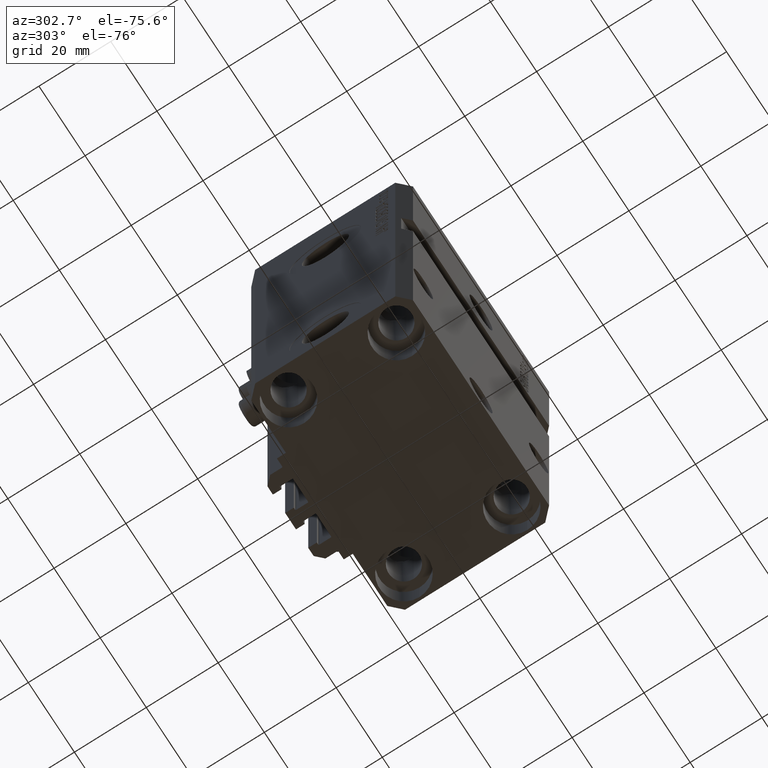
[diagram: clean part render]
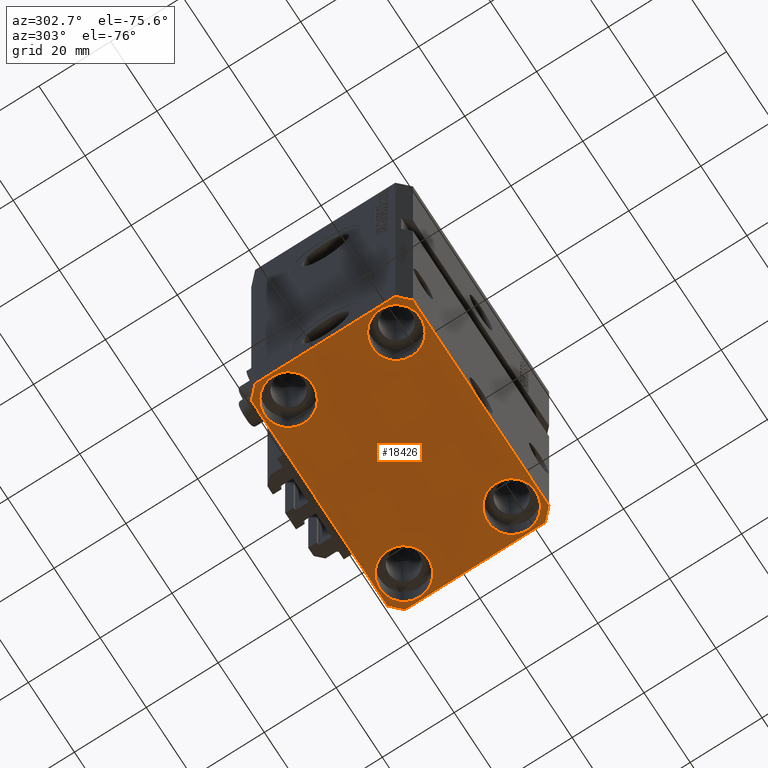
[diagram: same view with one face highlighted and labeled with its STEP entity id]
A machine part, auxiliary view. The second image highlights one B-rep face of the part: STEP entity #18426.
In plain terms, the highlighted planar face has unit normal (0, 0, 1).
Its self-contained STEP definition (entity closure, byte-faithful):
#554 = FACE_BOUND ( 'NONE', #3876, .T. ) ;
#1653 = VECTOR ( 'NONE', #14695, 1000.000000000000000 ) ;
#1756 = CARTESIAN_POINT ( 'NONE',  ( 32.49999999999651124, -19.49999999999949196, -107.0000000000000000 ) ) ;
#2428 = EDGE_CURVE ( 'NONE', #6114, #38193, #13935, .T. ) ;
#2500 = EDGE_CURVE ( 'NONE', #31139, #47127, #18763, .T. ) ;
#2878 = DIRECTION ( 'NONE',  ( -0.000000000000000000, -0.000000000000000000, 1.000000000000000000 ) ) ;
#3039 = ORIENTED_EDGE ( 'NONE', *, *, #32647, .T. ) ;
#3407 = EDGE_CURVE ( 'NONE', #38193, #6114, #41357, .T. ) ;
#3694 = CARTESIAN_POINT ( 'NONE',  ( 31.74999999997746869, -15.00000000000000000, -107.0000000000000000 ) ) ;
#3876 = EDGE_LOOP ( 'NONE', ( #34654, #14080 ) ) ;
#4084 = DIRECTION ( 'NONE',  ( 1.000000000000000000, 0.000000000000000000, -0.000000000000000000 ) ) ;
#4833 = PLANE ( 'NONE',  #34648 ) ;
#4841 = CARTESIAN_POINT ( 'NONE',  ( 18.25000000004154543, 15.00000000000000888, -107.0000000000000000 ) ) ;
#5420 = CARTESIAN_POINT ( 'NONE',  ( 32.49999999999702993, 19.49999999999945999, -107.0000000000000000 ) ) ;
#6114 = VERTEX_POINT ( 'NONE', #4841 ) ;
#6767 = DIRECTION ( 'NONE',  ( -0.000000000000000000, -0.000000000000000000, 1.000000000000000000 ) ) ;
#7334 = VERTEX_POINT ( 'NONE', #14166 ) ;
#7574 = CARTESIAN_POINT ( 'NONE',  ( 31.74999999995845101, 15.00000000000000888, -107.0000000000000000 ) ) ;
#7735 = VECTOR ( 'NONE', #15795, 1000.000000000000114 ) ;
#7911 = EDGE_LOOP ( 'NONE', ( #32488, #24977, #46452, #12454, #23835, #17558, #27106, #13474 ) ) ;
#7925 = DIRECTION ( 'NONE',  ( 0.7071067811865483499, 0.7071067811865466846, 0.000000000000000000 ) ) ;
#8119 = DIRECTION ( 'NONE',  ( 0.7071067811865474617, -0.7071067811865474617, 0.000000000000000000 ) ) ;
#9299 = CIRCLE ( 'NONE', #29466, 6.749999999977465137 ) ;
#9692 = CIRCLE ( 'NONE', #13714, 6.750000000041541881 ) ;
#10274 = LINE ( 'NONE', #14788, #7735 ) ;
#10524 = EDGE_CURVE ( 'NONE', #47127, #12642, #16660, .T. ) ;
#10728 = VERTEX_POINT ( 'NONE', #27235 ) ;
#10803 = DIRECTION ( 'NONE',  ( 1.000000000000000000, 0.000000000000000000, 0.000000000000000000 ) ) ;
#10907 = CARTESIAN_POINT ( 'NONE',  ( 25.00000000000000355, -15.00000000000000000, -107.0000000000000000 ) ) ;
#10916 = DIRECTION ( 'NONE',  ( -0.000000000000000000, -0.000000000000000000, 1.000000000000000000 ) ) ;
#11753 = EDGE_CURVE ( 'NONE', #32916, #35137, #10274, .T. ) ;
#11909 = LINE ( 'NONE', #42687, #39906 ) ;
#12106 = EDGE_LOOP ( 'NONE', ( #27674, #20648 ) ) ;
#12367 = DIRECTION ( 'NONE',  ( 1.334402673828349134E-14, 1.000000000000000000, 0.000000000000000000 ) ) ;
#12391 = FACE_BOUND ( 'NONE', #23896, .T. ) ;
#12395 = CARTESIAN_POINT ( 'NONE',  ( 29.49999999999707967, 22.49999999999951328, -107.0000000000000000 ) ) ;
#12454 = ORIENTED_EDGE ( 'NONE', *, *, #2500, .F. ) ;
#12642 = VERTEX_POINT ( 'NONE', #20353 ) ;
#13474 = ORIENTED_EDGE ( 'NONE', *, *, #11753, .F. ) ;
#13714 = AXIS2_PLACEMENT_3D ( 'NONE', #33264, #6767, #10803 ) ;
#13935 = CIRCLE ( 'NONE', #34915, 6.749999999958452790 ) ;
#14080 = ORIENTED_EDGE ( 'NONE', *, *, #46384, .T. ) ;
#14166 = CARTESIAN_POINT ( 'NONE',  ( 29.49999999999707967, 22.49999999999951328, -107.0000000000000000 ) ) ;
#14282 = CIRCLE ( 'NONE', #44905, 6.750000000022533087 ) ;
#14695 = DIRECTION ( 'NONE',  ( 1.000000000000000000, 1.176083712526788232E-16, 0.000000000000000000 ) ) ;
#14788 = CARTESIAN_POINT ( 'NONE',  ( -29.49999999999650413, 22.49999999999949907, -107.0000000000000000 ) ) ;
#15434 = LINE ( 'NONE', #12395, #34425 ) ;
#15795 = DIRECTION ( 'NONE',  ( -0.7071067811865474617, -0.7071067811865474617, 0.000000000000000000 ) ) ;
#15933 = FACE_OUTER_BOUND ( 'NONE', #7911, .T. ) ;
#15959 = EDGE_CURVE ( 'NONE', #12642, #7334, #32910, .T. ) ;
#16660 = LINE ( 'NONE', #1756, #30274 ) ;
#17558 = ORIENTED_EDGE ( 'NONE', *, *, #49846, .F. ) ;
#18223 = CARTESIAN_POINT ( 'NONE',  ( -25.00000000000000355, 15.00000000000000000, -107.0000000000000000 ) ) ;
#18256 = ORIENTED_EDGE ( 'NONE', *, *, #20466, .T. ) ;
#18309 = CARTESIAN_POINT ( 'NONE',  ( 29.49999999999650413, -22.49999999999949196, -107.0000000000000000 ) ) ;
#18426 = ADVANCED_FACE ( 'NONE', ( #12391, #554, #27069, #39401, #15933 ), #4833, .F. ) ;
#18763 = LINE ( 'NONE', #30134, #48595 ) ;
#19661 = DIRECTION ( 'NONE',  ( -0.000000000000000000, -0.000000000000000000, 1.000000000000000000 ) ) ;
#20150 = CIRCLE ( 'NONE', #35455, 6.749999999977465137 ) ;
#20353 = CARTESIAN_POINT ( 'NONE',  ( 32.49999999999702993, 19.49999999999945999, -107.0000000000000000 ) ) ;
#20466 = EDGE_CURVE ( 'NONE', #32867, #31482, #9692, .T. ) ;
#20648 = ORIENTED_EDGE ( 'NONE', *, *, #3407, .T. ) ;
#20848 = CARTESIAN_POINT ( 'NONE',  ( -29.49999999999650413, 22.49999999999949907, -107.0000000000000000 ) ) ;
#21066 = CARTESIAN_POINT ( 'NONE',  ( -18.24999999997747224, 15.00000000000000000, -107.0000000000000000 ) ) ;
#21136 = DIRECTION ( 'NONE',  ( -0.000000000000000000, -0.000000000000000000, 1.000000000000000000 ) ) ;
#21556 = CARTESIAN_POINT ( 'NONE',  ( -32.49999999999650413, 19.49999999999949907, -107.0000000000000000 ) ) ;
#21776 = CARTESIAN_POINT ( 'NONE',  ( -29.49999999999650413, -22.49999999999949907, -107.0000000000000000 ) ) ;
#21810 = CARTESIAN_POINT ( 'NONE',  ( 24.99999999999999645, 15.00000000000000888, -107.0000000000000000 ) ) ;
#22447 = EDGE_CURVE ( 'NONE', #24886, #22986, #20150, .T. ) ;
#22463 = DIRECTION ( 'NONE',  ( -0.000000000000000000, -0.000000000000000000, 1.000000000000000000 ) ) ;
#22952 = LINE ( 'NONE', #25993, #30628 ) ;
#22986 = VERTEX_POINT ( 'NONE', #3694 ) ;
#23247 = EDGE_CURVE ( 'NONE', #35137, #40927, #22952, .T. ) ;
#23835 = ORIENTED_EDGE ( 'NONE', *, *, #24228, .F. ) ;
#23896 = EDGE_LOOP ( 'NONE', ( #3039, #18256 ) ) ;
#24228 = EDGE_CURVE ( 'NONE', #10728, #31139, #29102, .T. ) ;
#24886 = VERTEX_POINT ( 'NONE', #29109 ) ;
#24924 = DIRECTION ( 'NONE',  ( 1.000000000000000000, 0.000000000000000000, 0.000000000000000000 ) ) ;
#24977 = ORIENTED_EDGE ( 'NONE', *, *, #15959, .F. ) ;
#25310 = AXIS2_PLACEMENT_3D ( 'NONE', #47416, #19661, #43129 ) ;
#25993 = CARTESIAN_POINT ( 'NONE',  ( -32.49999999999650413, 19.49999999999949907, -107.0000000000000000 ) ) ;
#26310 = DIRECTION ( 'NONE',  ( -0.000000000000000000, -0.000000000000000000, 1.000000000000000000 ) ) ;
#27069 = FACE_BOUND ( 'NONE', #12106, .T. ) ;
#27106 = ORIENTED_EDGE ( 'NONE', *, *, #23247, .F. ) ;
#27148 = ORIENTED_EDGE ( 'NONE', *, *, #42838, .T. ) ;
#27235 = CARTESIAN_POINT ( 'NONE',  ( -29.49999999999650413, -22.49999999999949907, -107.0000000000000000 ) ) ;
#27674 = ORIENTED_EDGE ( 'NONE', *, *, #2428, .T. ) ;
#28279 = DIRECTION ( 'NONE',  ( 1.000000000000000000, 0.000000000000000000, 0.000000000000000000 ) ) ;
#29102 = LINE ( 'NONE', #21776, #1653 ) ;
#29109 = CARTESIAN_POINT ( 'NONE',  ( 18.25000000002253842, -15.00000000000000000, -107.0000000000000000 ) ) ;
#29458 = EDGE_CURVE ( 'NONE', #44428, #35839, #37310, .T. ) ;
#29466 = AXIS2_PLACEMENT_3D ( 'NONE', #10907, #26310, #41930 ) ;
#29601 = DIRECTION ( 'NONE',  ( 1.000000000000000000, 0.000000000000000000, 0.000000000000000000 ) ) ;
#30134 = CARTESIAN_POINT ( 'NONE',  ( 29.49999999999650413, -22.49999999999949196, -107.0000000000000000 ) ) ;
#30274 = VECTOR ( 'NONE', #12367, 1000.000000000000000 ) ;
#30462 = VECTOR ( 'NONE', #48279, 1000.000000000000000 ) ;
#30628 = VECTOR ( 'NONE', #38356, 1000.000000000000000 ) ;
#31139 = VERTEX_POINT ( 'NONE', #18309 ) ;
#31482 = VERTEX_POINT ( 'NONE', #40223 ) ;
#31666 = AXIS2_PLACEMENT_3D ( 'NONE', #41643, #22463, #37853 ) ;
#32488 = ORIENTED_EDGE ( 'NONE', *, *, #42967, .F. ) ;
#32647 = EDGE_CURVE ( 'NONE', #31482, #32867, #35811, .T. ) ;
#32867 = VERTEX_POINT ( 'NONE', #38545 ) ;
#32910 = LINE ( 'NONE', #5420, #30462 ) ;
#32916 = VERTEX_POINT ( 'NONE', #20848 ) ;
#33264 = CARTESIAN_POINT ( 'NONE',  ( -25.00000000000000355, -15.00000000000000000, -107.0000000000000000 ) ) ;
#34119 = AXIS2_PLACEMENT_3D ( 'NONE', #46020, #21136, #24924 ) ;
#34425 = VECTOR ( 'NONE', #45975, 1000.000000000000000 ) ;
#34648 = AXIS2_PLACEMENT_3D ( 'NONE', #35611, #38654, #4084 ) ;
#34654 = ORIENTED_EDGE ( 'NONE', *, *, #22447, .T. ) ;
#34915 = AXIS2_PLACEMENT_3D ( 'NONE', #21810, #2878, #37196 ) ;
#35137 = VERTEX_POINT ( 'NONE', #21556 ) ;
#35455 = AXIS2_PLACEMENT_3D ( 'NONE', #46456, #42909, #28279 ) ;
#35611 = CARTESIAN_POINT ( 'NONE',  ( 0.000000000000000000, 0.000000000000000000, -107.0000000000000000 ) ) ;
#35811 = CIRCLE ( 'NONE', #25310, 6.750000000041541881 ) ;
#35839 = VERTEX_POINT ( 'NONE', #21066 ) ;
#36968 = EDGE_LOOP ( 'NONE', ( #47019, #27148 ) ) ;
#37196 = DIRECTION ( 'NONE',  ( 1.000000000000000000, 0.000000000000000000, 0.000000000000000000 ) ) ;
#37310 = CIRCLE ( 'NONE', #31666, 6.750000000022533087 ) ;
#37853 = DIRECTION ( 'NONE',  ( 1.000000000000000000, 0.000000000000000000, 0.000000000000000000 ) ) ;
#38193 = VERTEX_POINT ( 'NONE', #7574 ) ;
#38356 = DIRECTION ( 'NONE',  ( 0.000000000000000000, -1.000000000000000000, 0.000000000000000000 ) ) ;
#38545 = CARTESIAN_POINT ( 'NONE',  ( -18.24999999995845812, -15.00000000000000000, -107.0000000000000000 ) ) ;
#38654 = DIRECTION ( 'NONE',  ( 0.000000000000000000, 0.000000000000000000, 1.000000000000000000 ) ) ;
#39401 = FACE_BOUND ( 'NONE', #36968, .T. ) ;
#39906 = VECTOR ( 'NONE', #8119, 1000.000000000000114 ) ;
#40223 = CARTESIAN_POINT ( 'NONE',  ( -31.75000000004154899, -15.00000000000000000, -107.0000000000000000 ) ) ;
#40927 = VERTEX_POINT ( 'NONE', #46675 ) ;
#41357 = CIRCLE ( 'NONE', #34119, 6.749999999958452790 ) ;
#41643 = CARTESIAN_POINT ( 'NONE',  ( -25.00000000000000355, 15.00000000000000000, -107.0000000000000000 ) ) ;
#41930 = DIRECTION ( 'NONE',  ( 1.000000000000000000, 0.000000000000000000, 0.000000000000000000 ) ) ;
#42687 = CARTESIAN_POINT ( 'NONE',  ( -32.49999999999650413, -19.49999999999949907, -107.0000000000000000 ) ) ;
#42838 = EDGE_CURVE ( 'NONE', #35839, #44428, #14282, .T. ) ;
#42909 = DIRECTION ( 'NONE',  ( -0.000000000000000000, -0.000000000000000000, 1.000000000000000000 ) ) ;
#42967 = EDGE_CURVE ( 'NONE', #7334, #32916, #15434, .T. ) ;
#43129 = DIRECTION ( 'NONE',  ( 1.000000000000000000, 0.000000000000000000, 0.000000000000000000 ) ) ;
#44428 = VERTEX_POINT ( 'NONE', #44807 ) ;
#44807 = CARTESIAN_POINT ( 'NONE',  ( -31.75000000002253842, 15.00000000000000000, -107.0000000000000000 ) ) ;
#44905 = AXIS2_PLACEMENT_3D ( 'NONE', #18223, #10916, #29601 ) ;
#45975 = DIRECTION ( 'NONE',  ( -1.000000000000000000, -2.352167425053553784E-16, 0.000000000000000000 ) ) ;
#46020 = CARTESIAN_POINT ( 'NONE',  ( 24.99999999999999645, 15.00000000000000888, -107.0000000000000000 ) ) ;
#46384 = EDGE_CURVE ( 'NONE', #22986, #24886, #9299, .T. ) ;
#46452 = ORIENTED_EDGE ( 'NONE', *, *, #10524, .F. ) ;
#46456 = CARTESIAN_POINT ( 'NONE',  ( 25.00000000000000355, -15.00000000000000000, -107.0000000000000000 ) ) ;
#46675 = CARTESIAN_POINT ( 'NONE',  ( -32.49999999999650413, -19.49999999999949907, -107.0000000000000000 ) ) ;
#47019 = ORIENTED_EDGE ( 'NONE', *, *, #29458, .T. ) ;
#47127 = VERTEX_POINT ( 'NONE', #49063 ) ;
#47416 = CARTESIAN_POINT ( 'NONE',  ( -25.00000000000000355, -15.00000000000000000, -107.0000000000000000 ) ) ;
#48279 = DIRECTION ( 'NONE',  ( -0.7071067811865352493, 0.7071067811865597852, 0.000000000000000000 ) ) ;
#48595 = VECTOR ( 'NONE', #7925, 1000.000000000000000 ) ;
#49063 = CARTESIAN_POINT ( 'NONE',  ( 32.49999999999651124, -19.49999999999949196, -107.0000000000000000 ) ) ;
#49846 = EDGE_CURVE ( 'NONE', #40927, #10728, #11909, .T. ) ;